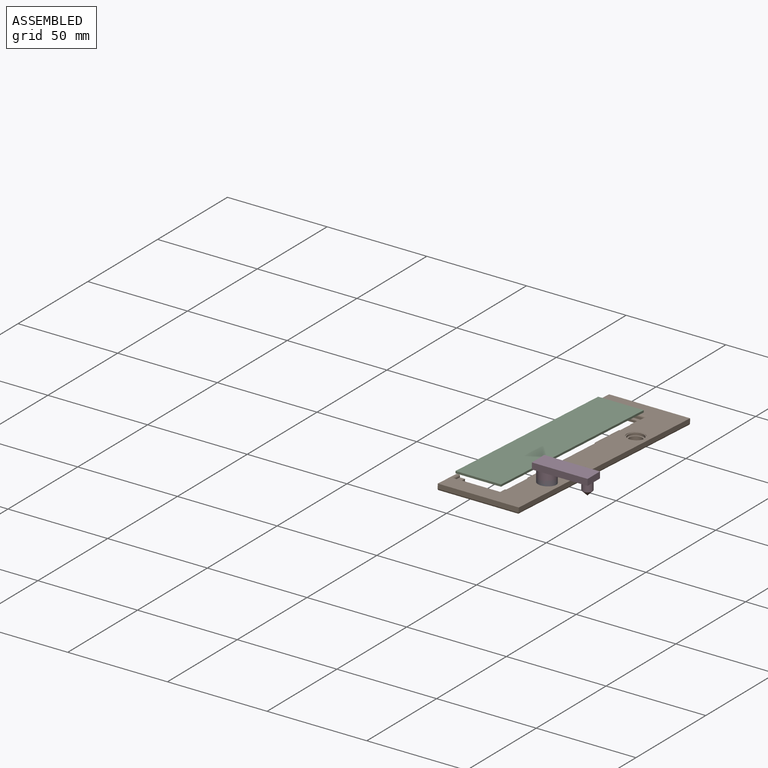
[diagram: assembled view]
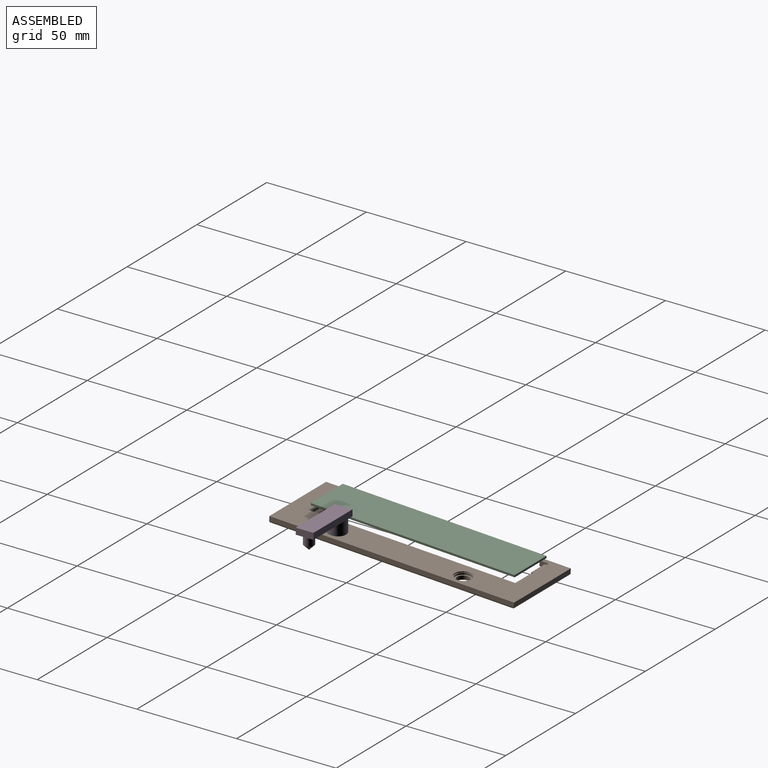
[diagram: assembled view, second angle]
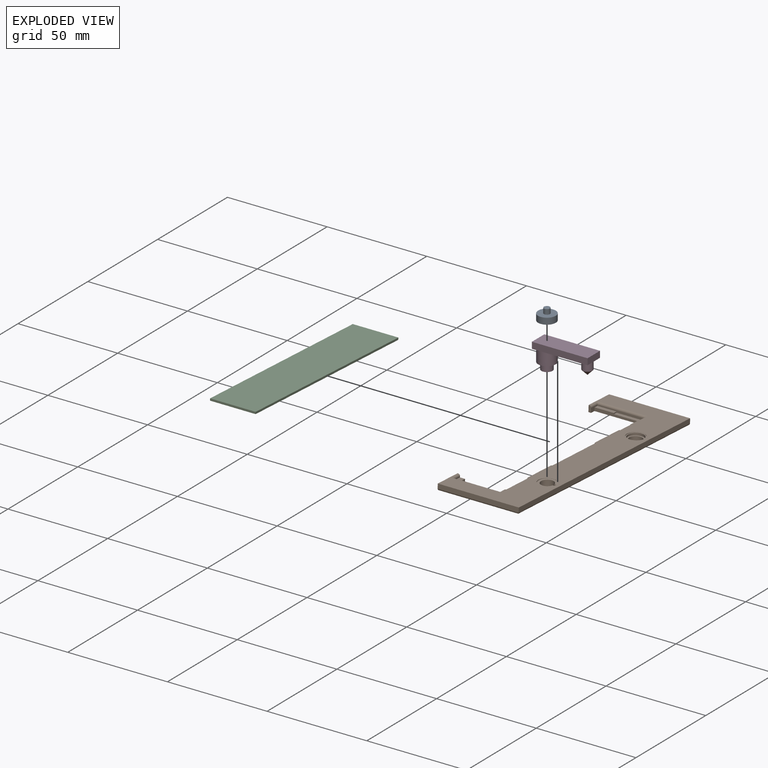
[diagram: exploded view]
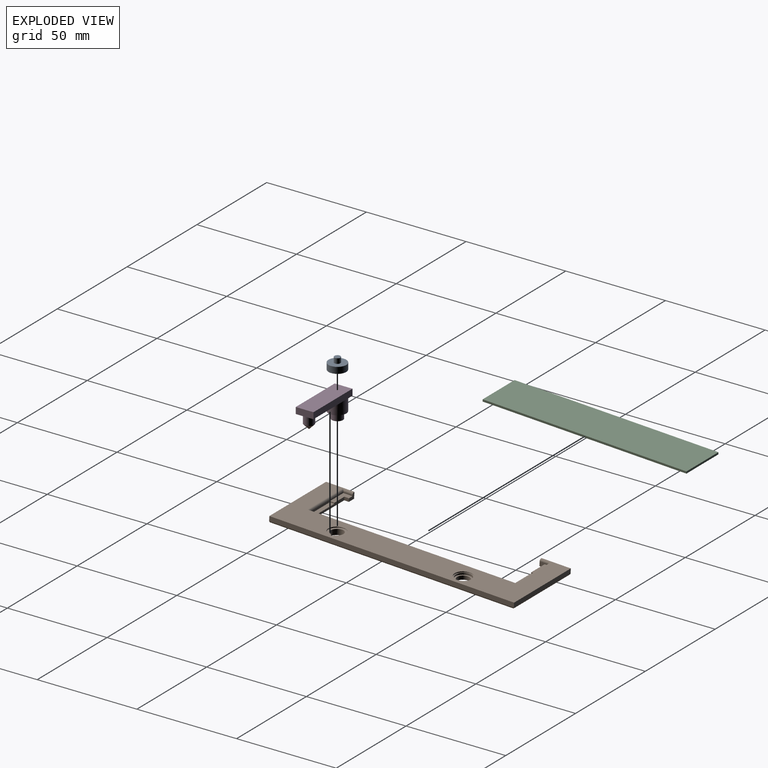
[diagram: exploded view, second angle]
ASSEMBLY  parts=4 mates=4
PART A: 5 faces, bbox 8.9x8.9x5.7 mm
  f0: cylinder r=4.45mm len=8.89mm, axis (0,0,-1), area 88.7mm2, adj f1,f2
  f1: plane 8.89x8.89mm, normal (0,0,1), area 54.8mm2, adj f0,f3
  f2: plane 8.89x8.89mm, normal (0,0,-1), area 62.1mm2, adj f0
  f3: cylinder r=1.52mm len=3.05mm, axis (0,0,-1), area 24.3mm2, adj f1,f4
  f4: plane 3.05x3.05mm, normal (0,0,1), area 7.3mm2, adj f3
PART B: 60 faces, bbox 40.6x122.9x3.2 mm
  f0: cylinder r=3.17mm len=6.35mm, axis (0,0,1), area 56.4mm2, adj f5,f6,f15,f53,f55
  f1: cylinder r=3.97mm len=7.94mm, axis (0,0,1), area 23.3mm2, adj f2,f4,f52,f58
  f2: plane 0.95x0.46mm, normal (0,1,0), area 0.4mm2, adj f1,f3,f52,f58
  f3: plane 1.27x1.02mm, normal (-1,0,0), area 1.2mm2, adj f2,f4,f52,f59
  f4: plane 1.02x0.46mm, normal (0,-1,0), area 0.5mm2, adj f1,f3,f52,f58
  f5: plane 1.27x1.02mm, normal (0,-1,0), area 1.3mm2, adj f0,f7,f53,f55
  f6: plane 1.27x0.95mm, normal (0,1,0), area 1.2mm2, adj f0,f7,f53,f55
  f7: plane 1.27x1.02mm, normal (-1,0,0), area 1.3mm2, adj f5,f6,f53,f54,f56
  f8: plane 122.94x40.64mm, normal (0,0,1), area 2151.5mm2, adj f14,f17,f18,f19,f20,f28,f39,f40
  f9: cylinder r=3.17mm len=6.35mm, axis (0,0,1), area 38mm2, adj f15,f52
  f10: plane 4.57x0.51mm, normal (1,0,0), area 2.3mm2, adj f23,f28,f40,f51
  f11: plane 13.97x6.86mm, normal (0,0,1), area 43.5mm2, adj f21,f23,f30,f31,f32,f50
  f12: plane 13.97x7.11mm, normal (0,0,1), area 40mm2, adj f13,f21,f25,f26,f27,f48
  f13: plane 23.62x1.02mm, normal (0,-1,0), area 19.1mm2, adj f12,f21,f22,f43,f48,f49
  f14: plane 14.22x3.18mm, normal (-1,0,0), area 44.9mm2, adj f8,f15,f17,f28,f45
  f15: plane 120.9x39.62mm, normal (0,0,-1), area 2390.8mm2, adj f0,f9,f14,f20,f21,f22,f25,f26
  f16: plane 17.02x2.54mm, normal (0,0,1), area 43.2mm2, adj f21,f33,f34,f35
  f17: plane 40.64x2.16mm, normal (0,-1,0), area 87.7mm2, adj f8,f14,f18,f45
  f18: plane 122.94x2.16mm, normal (1,0,0), area 265.4mm2, adj f8,f17,f19,f46
  f19: plane 40.64x2.16mm, normal (0,1,0), area 87.7mm2, adj f8,f18,f20,f47
  f20: plane 14.73x3.18mm, normal (-1,0,0), area 46.6mm2, adj f8,f15,f19,f39,f47
  f21: plane 103.12x2.16mm, normal (-1,0,0), area 167.2mm2, adj f11,f12,f13,f15,f16,f23,f24,f25
  f22: plane 4.57x2.16mm, normal (1,0,0), area 6.5mm2, adj f13,f15,f27,f39,f44,f49
  f23: plane 23.62x1.02mm, normal (0,1,0), area 19.1mm2, adj f10,f11,f21,f41,f50,f51
  f24: plane 17.53x2.54mm, normal (0,0,1), area 44.5mm2, adj f21,f36,f37,f38
  f25: plane 2.29x1.14mm, normal (0,-1,0), area 2.6mm2, adj f12,f15,f21,f26
  f26: plane 5.08x1.14mm, normal (-1,0,0), area 5.8mm2, adj f12,f15,f25,f27
  f27: plane 21.34x1.65mm, normal (0,-1,0), area 29.3mm2, adj f12,f15,f22,f26,f48,f49
  f28: plane 3.81x3.18mm, normal (0,1,0), area 8mm2, adj f8,f10,f14,f15,f29,f40,f51
  f29: plane 2.29x1.65mm, normal (1,0,0), area 3.8mm2, adj f15,f28,f30,f51
  f30: plane 18.54x1.65mm, normal (0,1,0), area 24.8mm2, adj f11,f15,f29,f31,f50,f51
  f31: plane 4.57x1.14mm, normal (-1,0,0), area 5.2mm2, adj f11,f15,f30,f32
  f32: plane 2.54x1.14mm, normal (0,1,0), area 2.9mm2, adj f11,f15,f21,f31
  f33: plane 2.54x1.14mm, normal (0,-1,0), area 2.9mm2, adj f15,f16,f21,f34
  f34: plane 17.02x1.14mm, normal (-1,0,0), area 19.5mm2, adj f15,f16,f33,f35
  f35: plane 2.54x1.14mm, normal (0,1,0), area 2.9mm2, adj f15,f16,f21,f34
  f36: plane 2.54x1.14mm, normal (0,-1,0), area 2.9mm2, adj f15,f21,f24,f37
  f37: plane 17.53x1.14mm, normal (-1,0,0), area 20mm2, adj f15,f24,f36,f38
  f38: plane 2.54x1.14mm, normal (0,1,0), area 2.9mm2, adj f15,f21,f24,f37
  f39: plane 3.18x1.27mm, normal (0,-1,0), area 3.8mm2, adj f8,f15,f20,f22,f44
  f40: cylinder r=1.02mm len=5.59mm, axis (0,1,0), area 7.9mm2, adj f8,f10,f28,f41
  f41: cylinder r=1.02mm len=25.65mm, axis (-1,0,0), area 38.9mm2, adj f8,f23,f40,f42
  f42: cylinder r=1.02mm len=105.16mm, axis (0,-1,0), area 165.8mm2, adj f8,f21,f41,f43
  f43: cylinder r=1.02mm len=25.65mm, axis (1,0,0), area 38.9mm2, adj f8,f13,f42,f44
  f44: cylinder r=1.02mm len=5.59mm, axis (0,1,0), area 7.9mm2, adj f8,f22,f39,f43
  f45: cylinder r=1.02mm len=40.64mm, axis (1,0,0), area 64.3mm2, adj f14,f15,f17,f46
  f46: cylinder r=1.02mm len=122.94mm, axis (0,1,0), area 195mm2, adj f15,f18,f45,f47
  f47: cylinder r=1.02mm len=40.64mm, axis (-1,0,0), area 64.3mm2, adj f15,f19,f20,f46
  f48: plane 2.03x0.51mm, normal (1,0,0), area 1mm2, adj f12,f13,f27,f49
  f49: plane 9.65x2.03mm, normal (0,0,1), area 19.6mm2, adj f13,f22,f27,f48
  f50: plane 2.29x0.51mm, normal (1,0,0), area 1.2mm2, adj f11,f23,f30,f51
  f51: plane 9.65x4.57mm, normal (0,0,1), area 27.9mm2, adj f10,f23,f28,f29,f30,f50
  f52: plane 8.35x7.94mm, normal (0,0,1), area 18.4mm2, adj f1,f2,f3,f4,f9
  f53: plane 1.27x1.27mm, normal (0,0,1), area 1.6mm2, adj f0,f5,f6,f7
  f54: cylinder r=4.43mm len=8.85mm, axis (0,0,1), area 7.9mm2, adj f7,f8,f55,f56
  f55: plane 8.85x8.81mm, normal (0,-0.05,1), area 28.3mm2, adj f0,f5,f6,f54
  f56: plane 1.27x0.05mm, normal (0,0,1), area 0mm2, adj f7,f54
  f57: cylinder r=4.43mm len=8.85mm, axis (0,0,1), area 8mm2, adj f8,f58,f59
  f58: plane 8.85x8.81mm, normal (0,-0.05,1), area 11.5mm2, adj f1,f2,f4,f57
  f59: plane 1.27x0.07mm, normal (0,-0.05,1), area 0mm2, adj f3,f57
PART C: 6 faces, bbox 22.9x102.4x1 mm
  f0: plane 22.86x1.02mm, normal (0,-1,0), area 23.2mm2, adj f1,f3,f4,f5
  f1: plane 102.36x1.02mm, normal (1,0,0), area 104mm2, adj f0,f2,f4,f5
  f2: plane 22.86x1.02mm, normal (0,1,0), area 23.2mm2, adj f1,f3,f4,f5
  f3: plane 102.36x1.02mm, normal (-1,0,0), area 104mm2, adj f0,f2,f4,f5
  f4: plane 102.36x22.86mm, normal (0,0,1), area 2340mm2, adj f0,f1,f2,f3
  f5: plane 102.36x22.86mm, normal (0,0,-1), area 2340mm2, adj f0,f1,f2,f3
PART D: 18 faces, bbox 27.9x8.9x13 mm
  f0: cylinder r=4.45mm len=8.89mm, axis (0,0,-1), area 177.3mm2, adj f1,f8,f9,f10
  f1: plane 8.89x8.89mm, normal (0,0,-1), area 37.5mm2, adj f0,f2
  f2: cylinder r=2.79mm len=5.59mm, axis (0,0,1), area 60.2mm2, adj f1,f3
  f3: plane 5.59x5.59mm, normal (0,0,-1), area 14.6mm2, adj f2,f7
  f4: cylinder r=3.43mm len=6.86mm, axis (0,0,-1), area 93mm2, adj f5,f6
  f5: plane 6.86x6.86mm, normal (0,0,-1), area 36.9mm2, adj f4
  f6: plane 6.86x6.86mm, normal (0,0,1), area 27mm2, adj f4,f7
  f7: cylinder r=1.78mm len=4.45mm, axis (0,0,1), area 49.7mm2, adj f3,f6
  f8: plane 23.5x8.89mm, normal (0,0,-1), area 157.6mm2, adj f0,f11,f13,f15,f16
  f9: plane 4.45x4.45mm, normal (0,0,-1), area 4.2mm2, adj f0,f11,f12
  f10: plane 4.45x4.45mm, normal (0,0,-1), area 4.2mm2, adj f0,f12,f13
  f11: plane 27.94x3.18mm, normal (0,1,0), area 88.7mm2, adj f8,f9,f12,f14,f15
  f12: plane 8.89x3.18mm, normal (-1,0,0), area 28.2mm2, adj f9,f10,f11,f13,f14
  f13: plane 27.94x3.18mm, normal (0,-1,0), area 88.7mm2, adj f8,f10,f12,f14,f15
  f14: plane 27.94x8.89mm, normal (0,0,1), area 248.4mm2, adj f11,f12,f13,f15
  f15: plane 8.89x3.18mm, normal (1,0,0), area 28.2mm2, adj f8,f11,f13,f14
  f16: cylinder r=2.54mm len=5.08mm, axis (0,0,1), area 68.9mm2, adj f8,f17
  f17: cone r=2.54mm half-angle=45deg, axis (0,0,1), area 28.7mm2, adj f16
PLACE A t=(28.82,-19.28,0.46)mm
PLACE B rot(axis=(-1,0,0),3deg) t=(15.06,12.41,-3.93)mm
PLACE C rot(axis=(-1,0,0),3deg) t=(8.2,12.04,1.26)mm
PLACE D t=(28.82,-19.28,0.84)mm
MATE fastened A.f0 <-> D.f0  axis (0,0,1) through (28.82,-19.28,6.18)mm
MATE planar C.f0 <-> B.f23  axis (0,-1,0.05) through (8.2,-39.04,4.45)mm
MATE slider B.f55 <-> D.f0  axis (0,0,1) through (28.82,-19.28,0.62)mm
MATE planar C.f1 <-> B.f21  axis (1,0,0) through (19.63,12.07,1.77)mm
